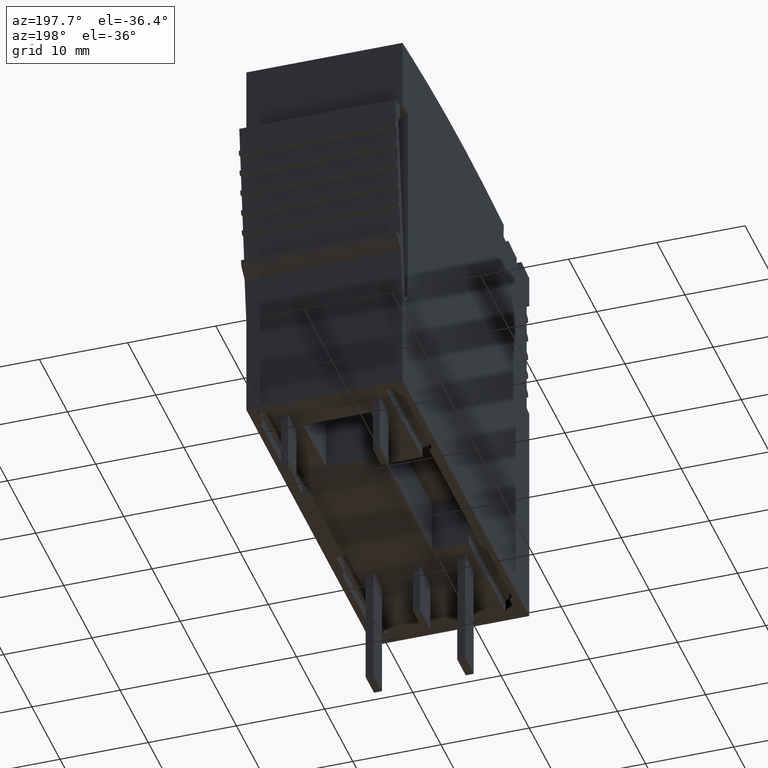
[diagram: clean part render]
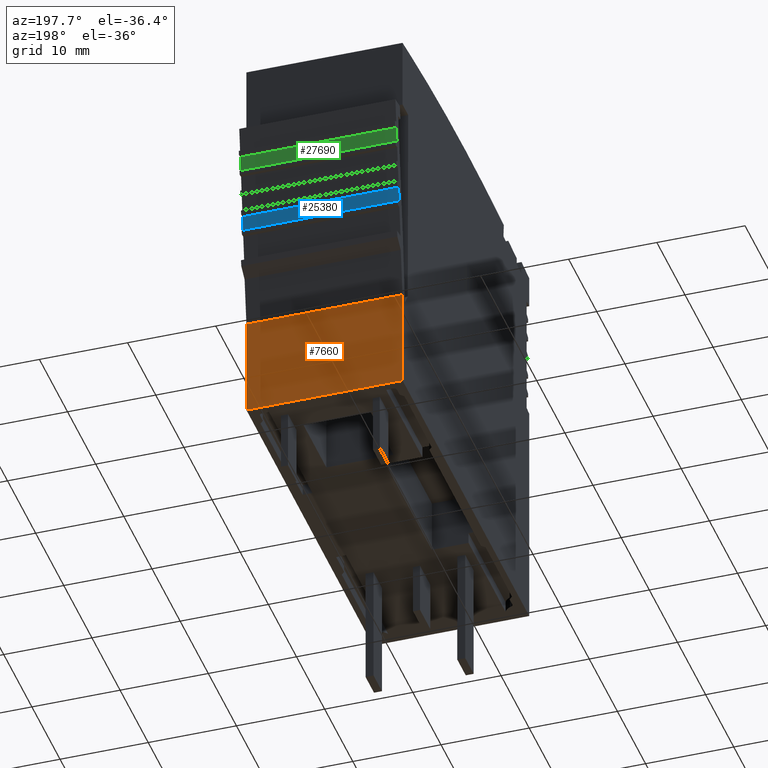
[diagram: same view with three faces highlighted in distinct colors, each labeled with its STEP entity id]
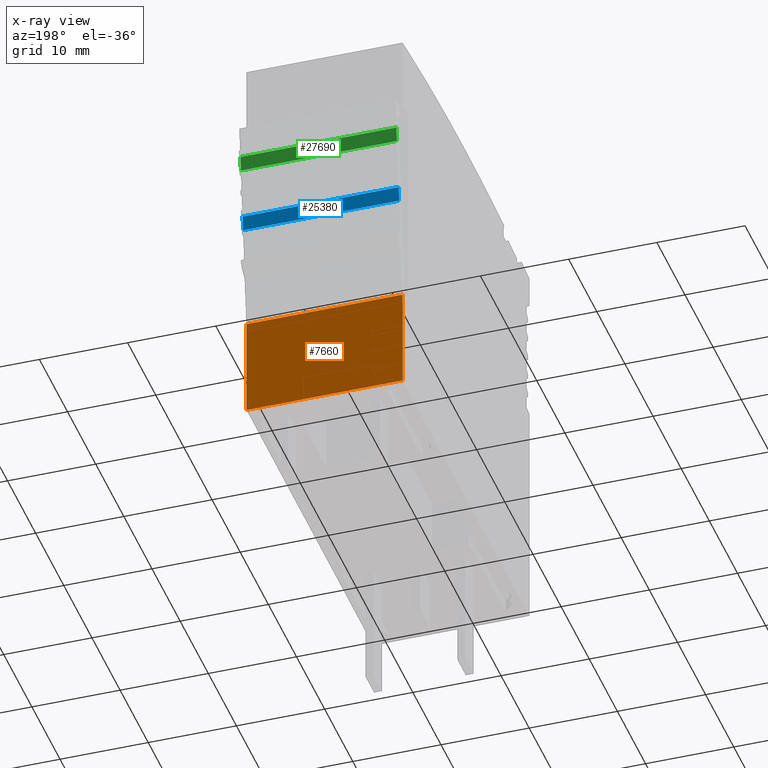
[diagram: x-ray of the same camera — body ghosted, the three highlighted faces saturated]
A machine part, auxiliary view with three faces highlighted in distinct colors.
The next image is the same camera in x-ray (body ghosted, the three faces saturated) — at least one of them is partly hidden behind the body in this view.
Their STEP definitions:

[orange] entity #7660 — the highlighted planar face has unit normal (0, 1, -0).
#590=CARTESIAN_POINT('',(161.653019874674,48.6916199044393,
7.27500000328213));
#600=VERTEX_POINT('',#590);
#750=CARTESIAN_POINT('',(161.653020212681,48.6916199435905,
-10.4249999990464));
#760=VERTEX_POINT('',#750);
#790=CARTESIAN_POINT('',(161.653019874617,48.691619906528,
0.425000002241946));
#800=DIRECTION('',(-4.39608349722675E-11,-4.03241341838188E-26,-1.));
#810=VECTOR('',#800,1.);
#820=LINE('',#790,#810);
#830=EDGE_CURVE('',#600,#760,#820,.T.);
#6640=CARTESIAN_POINT('',(161.653019966228,18.7759127726458,
7.27500000328213));
#6650=DIRECTION('',(3.1664068812074E-27,1.,2.19555973691018E-32));
#6660=VECTOR('',#6650,1.);
#6670=LINE('',#6640,#6660);
#6680=CARTESIAN_POINT('',(161.653020213459,37.1748719559853,
7.27500000328213));
#6690=VERTEX_POINT('',#6680);
#6700=EDGE_CURVE('',#6690,#600,#6670,.T.);
#7430=CARTESIAN_POINT('',(161.653020212681,37.1748719559853,
-10.4249999998557));
#7440=DIRECTION('',(1.,-3.41352519187654E-27,-4.39608349722675E-11));
#7450=DIRECTION('',(-4.39608349722675E-11,2.05434987495047E-33,-1.));
#7460=AXIS2_PLACEMENT_3D('',#7430,#7440,#7450);
#7470=PLANE('',#7460);
#7480=ORIENTED_EDGE('',*,*,#830,.F.);
#7490=CARTESIAN_POINT('',(161.65301996545,18.7759127726458,
-10.4249999990464));
#7500=DIRECTION('',(3.1664068812074E-27,1.,1.7632881463162E-32));
#7510=VECTOR('',#7500,1.);
#7520=LINE('',#7490,#7510);
#7530=CARTESIAN_POINT('',(161.653020212681,37.1748719559853,
-10.4249999990464));
#7540=VERTEX_POINT('',#7530);
#7550=EDGE_CURVE('',#7540,#760,#7520,.T.);
#7560=ORIENTED_EDGE('',*,*,#7550,.T.);
#7570=CARTESIAN_POINT('',(161.653019965926,37.1748719559853,
0.425000002241946));
#7580=DIRECTION('',(-4.39608349722675E-11,4.7506517970926E-33,-1.));
#7590=VECTOR('',#7580,1.);
#7600=LINE('',#7570,#7590);
#7610=EDGE_CURVE('',#6690,#7540,#7600,.T.);
#7620=ORIENTED_EDGE('',*,*,#7610,.T.);
#7630=ORIENTED_EDGE('',*,*,#6700,.F.);
#7640=EDGE_LOOP('',(#7630,#7620,#7560,#7480));
#7650=FACE_OUTER_BOUND('',#7640,.T.);
#7660=ADVANCED_FACE('',(#7650),#7470,.T.);

[blue] entity #25380 — the highlighted planar face has unit normal (0, -0.9945, 0.1045).
#6060=CARTESIAN_POINT('',(163.031952191176,62.1487131055465,
7.27500000328213));
#6070=VERTEX_POINT('',#6060);
#6100=CARTESIAN_POINT('',(158.473287180856,18.7759127726458,
7.27500000328213));
#6110=DIRECTION('',(0.104528463267653,0.994521895368273,
-2.68168857504504E-33));
#6120=VECTOR('',#6110,1.);
#6130=LINE('',#6100,#6120);
#6140=CARTESIAN_POINT('',(162.853070247947,60.4467651033846,
7.27500000328213));
#6150=VERTEX_POINT('',#6140);
#6160=EDGE_CURVE('',#6150,#6070,#6130,.T.);
#9510=CARTESIAN_POINT('',(162.85307024717,60.4467651034253,
-10.4249999990992));
#9520=VERTEX_POINT('',#9510);
#9550=CARTESIAN_POINT('',(158.473287180074,18.7759127726458,
-10.4249999989066));
#9560=DIRECTION('',(0.104528463267653,0.994521895368273,
-4.59515758777229E-12));
#9570=VECTOR('',#9560,1.);
#9580=LINE('',#9550,#9570);
#9590=CARTESIAN_POINT('',(163.031952190399,62.1487131055873,
-10.424999999107));
#9600=VERTEX_POINT('',#9590);
#9610=EDGE_CURVE('',#9520,#9600,#9580,.T.);
#25050=CARTESIAN_POINT('',(162.853070247646,60.4467651034004,
0.425000002241945));
#25060=DIRECTION('',(-4.39005881757781E-11,2.30073233551187E-12,-1.));
#25070=VECTOR('',#25060,1.);
#25080=LINE('',#25050,#25070);
#25090=EDGE_CURVE('',#6150,#9520,#25080,.T.);
#25220=CARTESIAN_POINT('',(162.877209925846,60.6764388040347,
-10.1249999979313));
#25230=DIRECTION('',(-0.994521895368273,0.104528463267653,
4.39005881757782E-11));
#25240=DIRECTION('',(-0.104528463267653,-0.994521895368273,
2.30073233551186E-12));
#25250=AXIS2_PLACEMENT_3D('',#25220,#25230,#25240);
#25260=PLANE('',#25250);
#25270=ORIENTED_EDGE('',*,*,#6160,.F.);
#25280=CARTESIAN_POINT('',(163.031952190875,62.1487131055623,
0.425000002241945));
#25290=DIRECTION('',(-4.39005881757781E-11,2.30073233551187E-12,-1.));
#25300=VECTOR('',#25290,1.);
#25310=LINE('',#25280,#25300);
#25320=EDGE_CURVE('',#6070,#9600,#25310,.T.);
#25330=ORIENTED_EDGE('',*,*,#25320,.F.);
#25340=ORIENTED_EDGE('',*,*,#9610,.T.);
#25350=ORIENTED_EDGE('',*,*,#25090,.T.);
#25360=EDGE_LOOP('',(#25350,#25340,#25330,#25270));
#25370=FACE_OUTER_BOUND('',#25360,.T.);
#25380=ADVANCED_FACE('',(#25370),#25260,.F.);

[green] entity #27690 — the highlighted planar face has unit normal (-0, 0.9945, -0.1045).
#5100=CARTESIAN_POINT('',(163.815915665683,69.6076273208079,
7.27500000328213));
#5110=VERTEX_POINT('',#5100);
#5140=CARTESIAN_POINT('',(158.473287180855,18.7759127726458,
7.27500000328213));
#5150=DIRECTION('',(-0.104528463267653,-0.994521895368273,
2.68168857504504E-33));
#5160=VECTOR('',#5150,1.);
#5170=LINE('',#5140,#5160);
#5180=CARTESIAN_POINT('',(163.637033722453,67.9056793186357,
7.27500000328213));
#5190=VERTEX_POINT('',#5180);
#5200=EDGE_CURVE('',#5110,#5190,#5170,.T.);
#10470=CARTESIAN_POINT('',(163.637033721676,67.9056793186764,
-10.4249999991336));
#10480=VERTEX_POINT('',#10470);
#10510=CARTESIAN_POINT('',(158.473287180074,18.7759127726458,
-10.4249999989066));
#10520=DIRECTION('',(-0.104528463267653,-0.994521895368273,
4.59515758777229E-12));
#10530=VECTOR('',#10520,1.);
#10540=LINE('',#10510,#10530);
#10550=CARTESIAN_POINT('',(163.815915664906,69.6076273208486,
-10.4249999991415));
#10560=VERTEX_POINT('',#10550);
#10570=EDGE_CURVE('',#10560,#10480,#10540,.T.);
#27360=CARTESIAN_POINT('',(163.637033722152,67.9056793186515,
0.425000002241946));
#27370=DIRECTION('',(4.39005881757781E-11,-2.30073233551187E-12,1.));
#27380=VECTOR('',#27370,1.);
#27390=LINE('',#27360,#27380);
#27400=EDGE_CURVE('',#10480,#5190,#27390,.T.);
#27530=CARTESIAN_POINT('',(163.774104279612,69.2098185627005,
-10.124999997951));
#27540=DIRECTION('',(0.994521895368273,-0.104528463267653,
-4.39005881757782E-11));
#27550=DIRECTION('',(0.104528463267653,0.994521895368273,
-2.30073233551187E-12));
#27560=AXIS2_PLACEMENT_3D('',#27530,#27540,#27550);
#27570=PLANE('',#27560);
#27580=ORIENTED_EDGE('',*,*,#5200,.T.);
#27590=CARTESIAN_POINT('',(163.815915665382,69.6076273208236,
0.425000002241946));
#27600=DIRECTION('',(4.39005881757781E-11,-2.30073233551187E-12,1.));
#27610=VECTOR('',#27600,1.);
#27620=LINE('',#27590,#27610);
#27630=EDGE_CURVE('',#10560,#5110,#27620,.T.);
#27640=ORIENTED_EDGE('',*,*,#27630,.T.);
#27650=ORIENTED_EDGE('',*,*,#10570,.F.);
#27660=ORIENTED_EDGE('',*,*,#27400,.F.);
#27670=EDGE_LOOP('',(#27660,#27650,#27640,#27580));
#27680=FACE_OUTER_BOUND('',#27670,.T.);
#27690=ADVANCED_FACE('',(#27680),#27570,.T.);